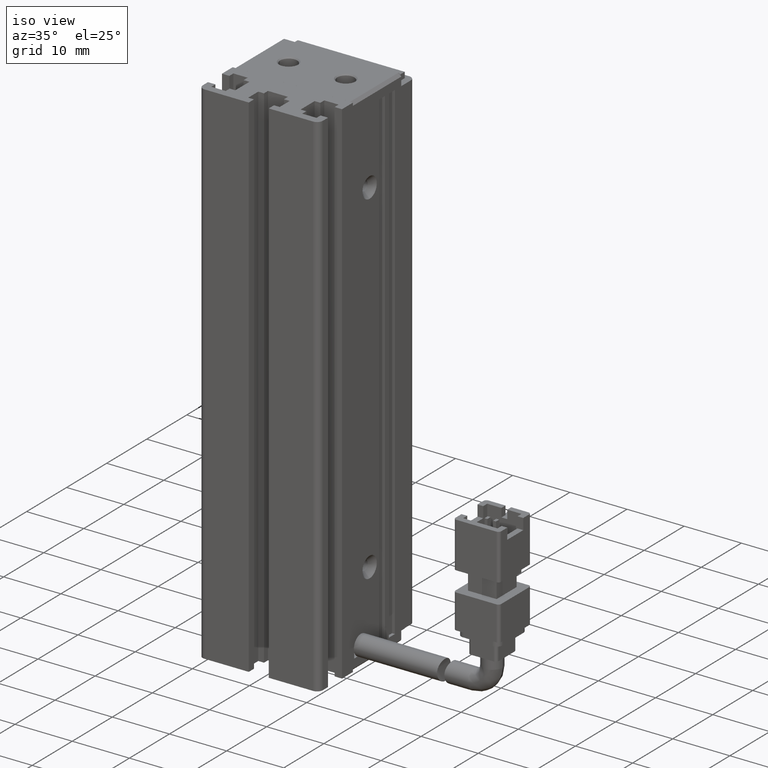
[diagram: clean part render]
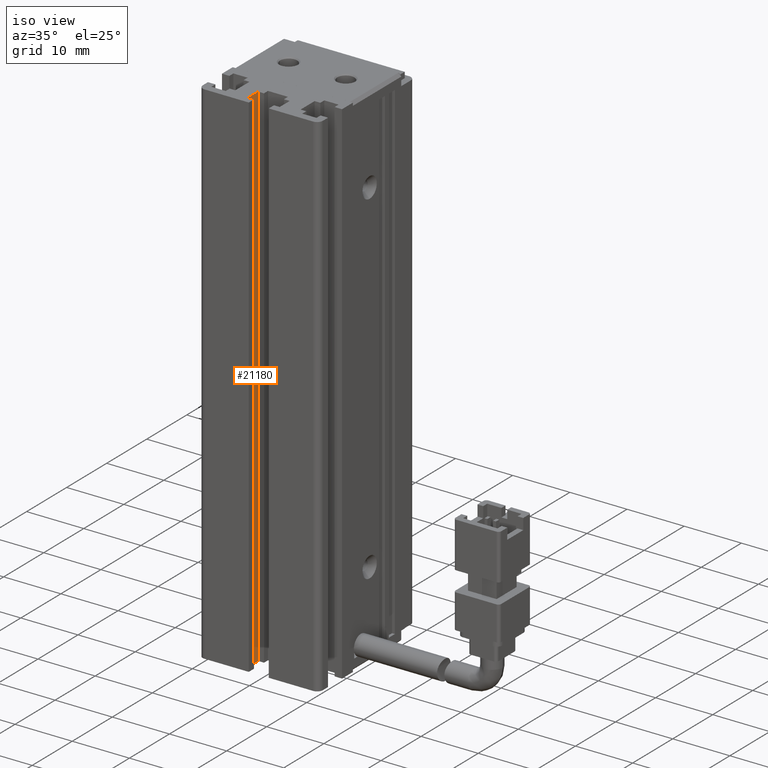
[diagram: same view with one face highlighted and labeled with its STEP entity id]
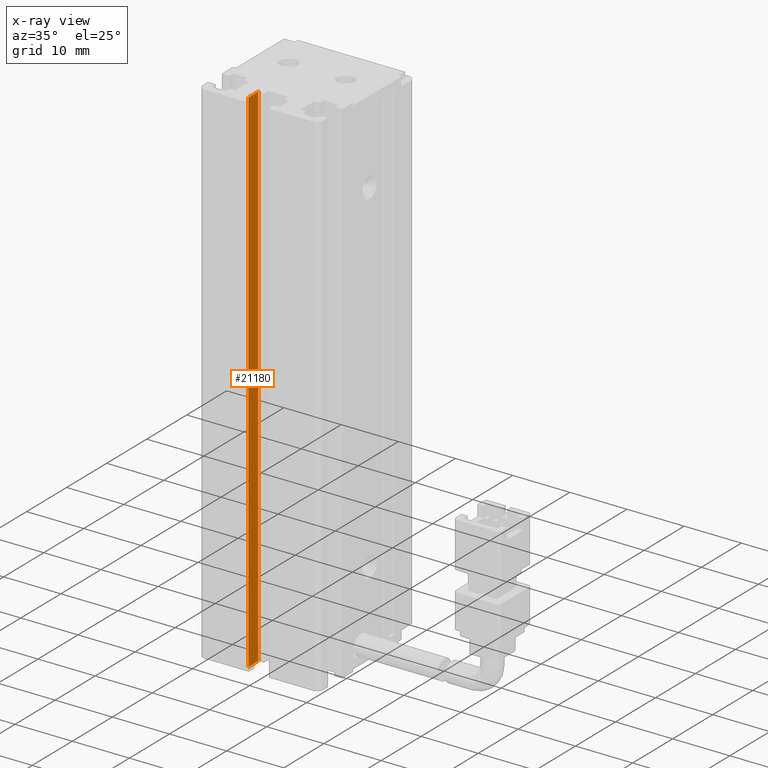
[diagram: x-ray of the same camera — body ghosted, the highlighted face saturated]
A machine part, iso view. The second image highlights one B-rep face of the part: STEP entity #21180.
The next image is the same camera in x-ray: the body ghosted, the highlighted face saturated — about 0% of this face is hidden behind the body in this view.
In plain terms, the highlighted planar face has unit normal (-1, 0, 0).
Its self-contained STEP definition (entity closure, byte-faithful):
#244 = CARTESIAN_POINT ( 'NONE',  ( 38.17537974683542500, 12.29073232304837200, -70.00000000000000000 ) ) ;
#3589 = LINE ( 'NONE', #244, #28884 ) ;
#4123 = CARTESIAN_POINT ( 'NONE',  ( 38.17537974683542500, 7.083797468354437600, -160.0000000000000000 ) ) ;
#4719 = CARTESIAN_POINT ( 'NONE',  ( 38.17537974683542500, 7.083797468354437600, -70.00000000000000000 ) ) ;
#5295 = ORIENTED_EDGE ( 'NONE', *, *, #14049, .T. ) ;
#6073 = VERTEX_POINT ( 'NONE', #31805 ) ;
#6271 = DIRECTION ( 'NONE',  ( -0.0000000000000000000, -0.0000000000000000000, -1.000000000000000000 ) ) ;
#7680 = VERTEX_POINT ( 'NONE', #29605 ) ;
#8535 = CARTESIAN_POINT ( 'NONE',  ( 38.17537974683542500, 14.79073232304837000, -70.00000000000000000 ) ) ;
#9964 = ORIENTED_EDGE ( 'NONE', *, *, #10372, .F. ) ;
#10372 = EDGE_CURVE ( 'NONE', #31988, #7680, #20745, .T. ) ;
#11418 = LINE ( 'NONE', #4719, #23032 ) ;
#12550 = VECTOR ( 'NONE', #6271, 1000.000000000000000 ) ;
#13564 = DIRECTION ( 'NONE',  ( 0.0000000000000000000, 0.0000000000000000000, 1.000000000000000000 ) ) ;
#14049 = EDGE_CURVE ( 'NONE', #6073, #7680, #31722, .T. ) ;
#14452 = AXIS2_PLACEMENT_3D ( 'NONE', #25940, #25833, #13564 ) ;
#15382 = ORIENTED_EDGE ( 'NONE', *, *, #26654, .F. ) ;
#15754 = PLANE ( 'NONE',  #14452 ) ;
#16526 = VECTOR ( 'NONE', #28752, 1000.000000000000000 ) ;
#20745 = LINE ( 'NONE', #8535, #12550 ) ;
#21180 = ADVANCED_FACE ( 'NONE', ( #27673 ), #15754, .F. ) ;
#21851 = EDGE_LOOP ( 'NONE', ( #9964, #26224, #15382, #5295 ) ) ;
#22894 = CARTESIAN_POINT ( 'NONE',  ( 38.17537974683542500, 12.29073232304837200, -70.00000000000000000 ) ) ;
#23032 = VECTOR ( 'NONE', #24501, 1000.000000000000000 ) ;
#24501 = DIRECTION ( 'NONE',  ( 0.0000000000000000000, 1.000000000000000000, -0.0000000000000000000 ) ) ;
#25000 = DIRECTION ( 'NONE',  ( 0.0000000000000000000, 0.0000000000000000000, 1.000000000000000000 ) ) ;
#25515 = VERTEX_POINT ( 'NONE', #22894 ) ;
#25833 = DIRECTION ( 'NONE',  ( -1.000000000000000000, 0.0000000000000000000, 0.0000000000000000000 ) ) ;
#25940 = CARTESIAN_POINT ( 'NONE',  ( 38.17537974683542500, 7.083797468354437600, -70.00000000000000000 ) ) ;
#26039 = EDGE_CURVE ( 'NONE', #25515, #31988, #11418, .T. ) ;
#26224 = ORIENTED_EDGE ( 'NONE', *, *, #26039, .F. ) ;
#26654 = EDGE_CURVE ( 'NONE', #6073, #25515, #3589, .T. ) ;
#26656 = CARTESIAN_POINT ( 'NONE',  ( 38.17537974683542500, 14.79073232304837000, -70.00000000000000000 ) ) ;
#27673 = FACE_OUTER_BOUND ( 'NONE', #21851, .T. ) ;
#28752 = DIRECTION ( 'NONE',  ( 0.0000000000000000000, 1.000000000000000000, -0.0000000000000000000 ) ) ;
#28884 = VECTOR ( 'NONE', #25000, 1000.000000000000000 ) ;
#29605 = CARTESIAN_POINT ( 'NONE',  ( 38.17537974683542500, 14.79073232304837000, -160.0000000000000000 ) ) ;
#31722 = LINE ( 'NONE', #4123, #16526 ) ;
#31805 = CARTESIAN_POINT ( 'NONE',  ( 38.17537974683542500, 12.29073232304837200, -160.0000000000000000 ) ) ;
#31988 = VERTEX_POINT ( 'NONE', #26656 ) ;